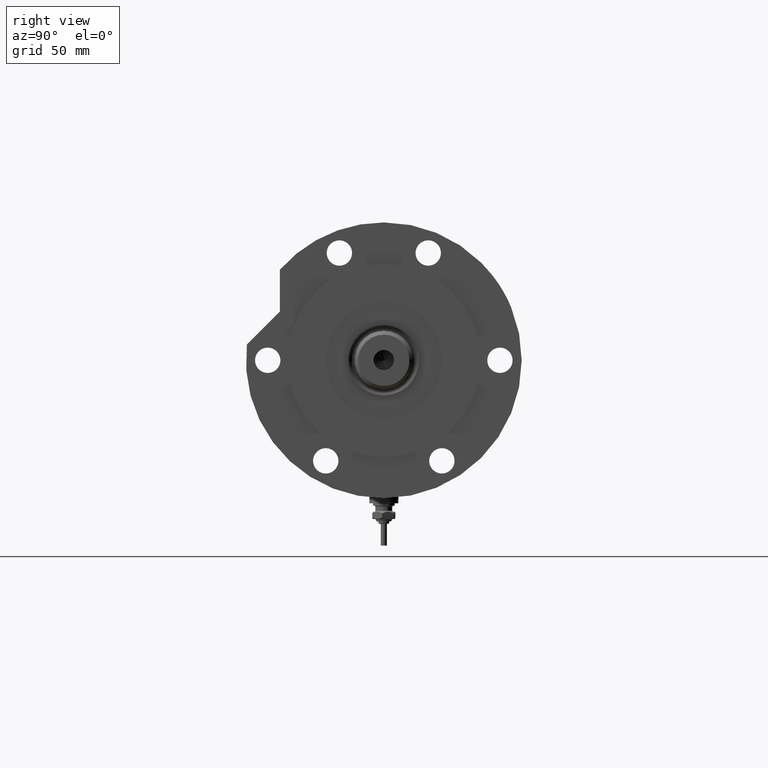
[diagram: clean part render]
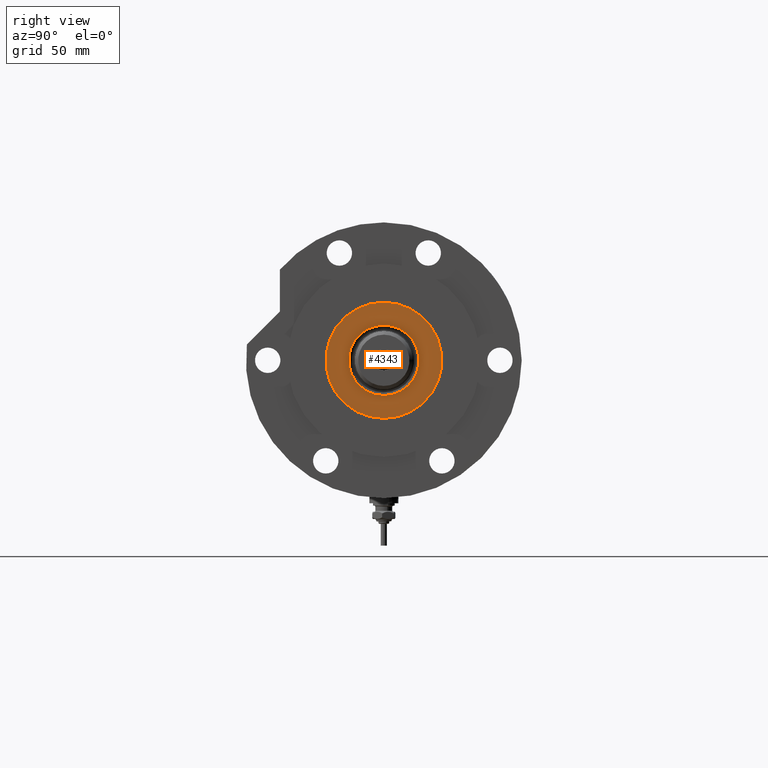
[diagram: same view with one face highlighted and labeled with its STEP entity id]
A machine part, right view. The second image highlights one B-rep face of the part: STEP entity #4343.
In plain terms, the highlighted planar face has unit normal (1, 0, -0).
Its self-contained STEP definition (entity closure, byte-faithful):
#94 = CIRCLE ( 'NONE', #4260, 24.00000000000000355 ) ;
#443 = DIRECTION ( 'NONE',  ( 1.000000000000000000, 0.000000000000000000, -0.000000000000000000 ) ) ;
#559 = ORIENTED_EDGE ( 'NONE', *, *, #6290, .T. ) ;
#656 = DIRECTION ( 'NONE',  ( 1.000000000000000000, 0.000000000000000000, 0.000000000000000000 ) ) ;
#1024 = DIRECTION ( 'NONE',  ( 0.000000000000000000, 0.000000000000000000, 1.000000000000000000 ) ) ;
#1044 = EDGE_CURVE ( 'NONE', #5476, #7166, #94, .T. ) ;
#1131 = FACE_BOUND ( 'NONE', #5843, .T. ) ;
#1225 = CARTESIAN_POINT ( 'NONE',  ( 0.000000000000000000, 0.000000000000000000, 41.00000000000000000 ) ) ;
#1291 = DIRECTION ( 'NONE',  ( -0.000000000000000000, -0.000000000000000000, -1.000000000000000000 ) ) ;
#1633 = DIRECTION ( 'NONE',  ( 1.000000000000000000, 0.000000000000000000, 0.000000000000000000 ) ) ;
#1710 = CIRCLE ( 'NONE', #3665, 14.54999999999997939 ) ;
#1829 = DIRECTION ( 'NONE',  ( -0.000000000000000000, -0.000000000000000000, -1.000000000000000000 ) ) ;
#2219 = CARTESIAN_POINT ( 'NONE',  ( 0.000000000000000000, 0.000000000000000000, 41.00000000000000000 ) ) ;
#2658 = CARTESIAN_POINT ( 'NONE',  ( -14.54999999999997939, 1.781861092759396721E-15, 41.00000000000000000 ) ) ;
#2668 = ORIENTED_EDGE ( 'NONE', *, *, #4439, .T. ) ;
#3068 = DIRECTION ( 'NONE',  ( 1.000000000000000000, 0.000000000000000000, 0.000000000000000000 ) ) ;
#3123 = CARTESIAN_POINT ( 'NONE',  ( 14.54999999999997939, 0.000000000000000000, 41.00000000000000000 ) ) ;
#3277 = CIRCLE ( 'NONE', #6122, 24.00000000000000355 ) ;
#3351 = CARTESIAN_POINT ( 'NONE',  ( 0.000000000000000000, 0.000000000000000000, 41.00000000000000000 ) ) ;
#3355 = ORIENTED_EDGE ( 'NONE', *, *, #1044, .T. ) ;
#3665 = AXIS2_PLACEMENT_3D ( 'NONE', #2219, #1829, #5396 ) ;
#3796 = AXIS2_PLACEMENT_3D ( 'NONE', #1225, #1291, #656 ) ;
#3935 = FACE_OUTER_BOUND ( 'NONE', #4553, .T. ) ;
#4241 = EDGE_CURVE ( 'NONE', #7166, #5476, #3277, .T. ) ;
#4260 = AXIS2_PLACEMENT_3D ( 'NONE', #5997, #4864, #3068 ) ;
#4343 = ADVANCED_FACE ( 'NONE', ( #1131, #3935 ), #5717, .T. ) ;
#4439 = EDGE_CURVE ( 'NONE', #5615, #5932, #6723, .T. ) ;
#4553 = EDGE_LOOP ( 'NONE', ( #3355, #4918 ) ) ;
#4864 = DIRECTION ( 'NONE',  ( 0.000000000000000000, 0.000000000000000000, 1.000000000000000000 ) ) ;
#4918 = ORIENTED_EDGE ( 'NONE', *, *, #4241, .T. ) ;
#5396 = DIRECTION ( 'NONE',  ( 1.000000000000000000, 0.000000000000000000, 0.000000000000000000 ) ) ;
#5476 = VERTEX_POINT ( 'NONE', #6361 ) ;
#5615 = VERTEX_POINT ( 'NONE', #2658 ) ;
#5717 = PLANE ( 'NONE',  #7341 ) ;
#5806 = CARTESIAN_POINT ( 'NONE',  ( 0.000000000000000000, 0.000000000000000000, 41.00000000000000000 ) ) ;
#5843 = EDGE_LOOP ( 'NONE', ( #559, #2668 ) ) ;
#5932 = VERTEX_POINT ( 'NONE', #3123 ) ;
#5997 = CARTESIAN_POINT ( 'NONE',  ( 0.000000000000000000, 0.000000000000000000, 41.00000000000000000 ) ) ;
#6122 = AXIS2_PLACEMENT_3D ( 'NONE', #3351, #6808, #1633 ) ;
#6290 = EDGE_CURVE ( 'NONE', #5932, #5615, #1710, .T. ) ;
#6361 = CARTESIAN_POINT ( 'NONE',  ( -24.00000000000000355, 0.000000000000000000, 41.00000000000000000 ) ) ;
#6392 = CARTESIAN_POINT ( 'NONE',  ( 24.00000000000000355, 2.939152317953648289E-15, 41.00000000000000000 ) ) ;
#6723 = CIRCLE ( 'NONE', #3796, 14.54999999999997939 ) ;
#6808 = DIRECTION ( 'NONE',  ( 0.000000000000000000, 0.000000000000000000, 1.000000000000000000 ) ) ;
#7166 = VERTEX_POINT ( 'NONE', #6392 ) ;
#7341 = AXIS2_PLACEMENT_3D ( 'NONE', #5806, #1024, #443 ) ;